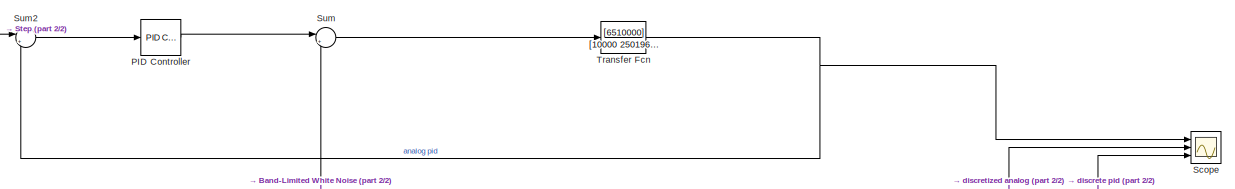
[diagram: root canvas - part 1/2, full width, top band]
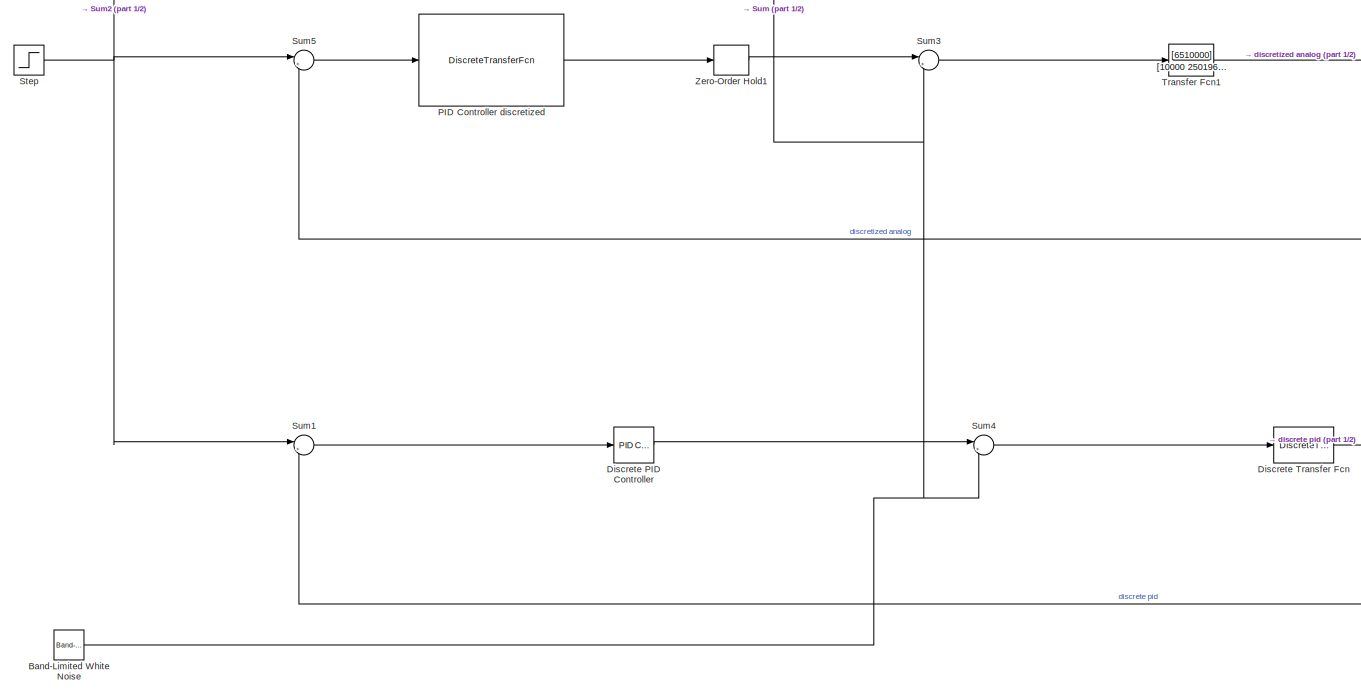
[diagram: root canvas - part 2/2, full width, middle band]
MODEL slx_443dbe1a7db8
KIND model
CONFIG AbsTol = auto
CONFIG EnableMultiTasking = off
CONFIG FixedStep = auto
CONFIG MaxStep = auto
CONFIG MinStep = auto
CONFIG RelTol = 1e-3
CONFIG SampleTimeConstraint = Unconstrained
CONFIG Solver = VariableStepAuto
CONFIG SolverName = VariableStepAuto
CONFIG StartTime = 0.0
CONFIG StopTime = 2.5
BLOCK [DiscreteTransferFcn]  PID Controller discretized
  Denominator = [1 -1 0.0003355]
  InputPortMap = u0
  Numerator = [5775 -1.136e04 5587]
  Ports = [1, 1]
  SampleTime = 0.004
BLOCK [Reference] Band-Limited White Noise  REF=simulink/Sources/Band-Limited
White Noise
  Ports = [0, 1]
  SourceBlock = simulink/Sources/Band-Limited\nWhite Noise
  SourceProductBaseCode = SL
  SourceProductName = Simulink
  SourceType = Band-Limited White Noise.
BLOCK [Reference] Discrete PID Controller  REF=simulink/Continuous/PID Controller
  Ports = [1, 1]
  SourceBlock = simulink/Continuous/PID Controller
  SourceProductBaseCode = SL
  SourceProductName = Simulink
  SourceType = PID 1dof
BLOCK [DiscreteTransferFcn] Discrete Transfer Fcn
  Denominator = [1 -2.333 1.666 -0.3331]
  InputPortMap = u0
  Numerator = [3.471e-06 1.041e-05 1.041e-05 3.471e-06]
  Ports = [1, 1]
  SampleTime = 0.004
BLOCK [Reference] PID Controller  REF=simulink/Continuous/PID Controller
  Ports = [1, 1]
  SourceBlock = simulink/Continuous/PID Controller
  SourceProductBaseCode = SL
  SourceProductName = Simulink
  SourceType = PID 1dof
BLOCK [Scope] Scope
  NumInputPorts = 3
  Ports = [3]
  ScopeSpecificationString = Simulink.scopes.TimeScopeBlockCfg('CurrentConfiguration', extmgr.ConfigurationSet(extmgr.Configuration('Core','General UI',true),extmgr.Configuration('Core','Source UI',true),extmgr.Configuration('Sources','WiredSimulink',true),extmgr.Configuration('Visuals','Time Domain',true,'SerializedDisplays',{struct('MinYLimReal','-0.1552','MaxYLimReal','1.31948','YLabelReal','','MinYLimMag','0.00000','MaxYL...<+1530ch>
BLOCK [Step] Step
  SampleTime = 0
BLOCK [Sum] Sum
  IconShape = round
  InputSameDT = off
  Inputs = |++
  OutDataTypeStr = Inherit: Inherit via internal rule
  Ports = [2, 1]
  SaturateOnIntegerOverflow = off
BLOCK [Sum] Sum1
  IconShape = round
  InputSameDT = off
  Inputs = |+-
  OutDataTypeStr = Inherit: Inherit via internal rule
  Ports = [2, 1]
  SaturateOnIntegerOverflow = off
BLOCK [Sum] Sum2
  IconShape = round
  InputSameDT = off
  Inputs = |+-
  OutDataTypeStr = Inherit: Inherit via internal rule
  Ports = [2, 1]
  SaturateOnIntegerOverflow = off
BLOCK [Sum] Sum3
  IconShape = round
  InputSameDT = off
  Inputs = |+-
  OutDataTypeStr = Inherit: Inherit via internal rule
  Ports = [2, 1]
  SaturateOnIntegerOverflow = off
BLOCK [Sum] Sum4
  IconShape = round
  InputSameDT = off
  Inputs = |+-
  OutDataTypeStr = Inherit: Inherit via internal rule
  Ports = [2, 1]
  SaturateOnIntegerOverflow = off
BLOCK [Sum] Sum5
  IconShape = round
  InputSameDT = off
  Inputs = |+-
  OutDataTypeStr = Inherit: Inherit via internal rule
  Ports = [2, 1]
  SaturateOnIntegerOverflow = off
BLOCK [TransferFcn] Transfer Fcn
  Denominator = [10000 2501961 346150 -36025000]
  Numerator = [6510000]
BLOCK [TransferFcn] Transfer Fcn1
  Denominator = [10000 2501961 346150 -36025000]
  Numerator = [6510000]
BLOCK [ZeroOrderHold] Zero-Order Hold1
  SampleTime = 0.004
LINE  PID Controller discretized:1 -> Zero-Order Hold1:1
NET Band-Limited White Noise:1 -> Sum3:2, Sum4:2, Sum:2
LINE Discrete PID Controller:1 -> Sum4:1
NET Discrete Transfer Fcn:1 -> Scope:3, Sum1:2
LINE PID Controller:1 -> Sum:1
NET Step:1 -> Sum1:1, Sum2:1, Sum5:1
LINE Sum1:1 -> Discrete PID Controller:1
LINE Sum2:1 -> PID Controller:1
LINE Sum3:1 -> Transfer Fcn1:1
LINE Sum4:1 -> Discrete Transfer Fcn:1
LINE Sum5:1 ->  PID Controller discretized:1
LINE Sum:1 -> Transfer Fcn:1
NET Transfer Fcn1:1 -> Scope:2, Sum5:2
NET Transfer Fcn:1 -> Scope:1, Sum2:2
LINE Zero-Order Hold1:1 -> Sum3:1
note: NET lines group one-source signal fan-out (src -> all destinations, sorted); 1:1 wires keep LINE
